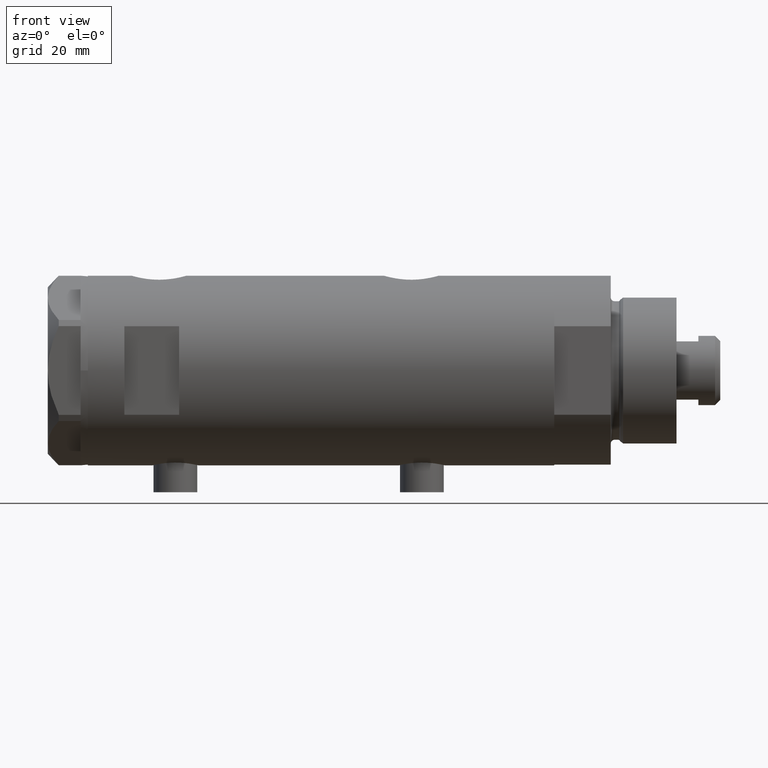
[diagram: clean part render]
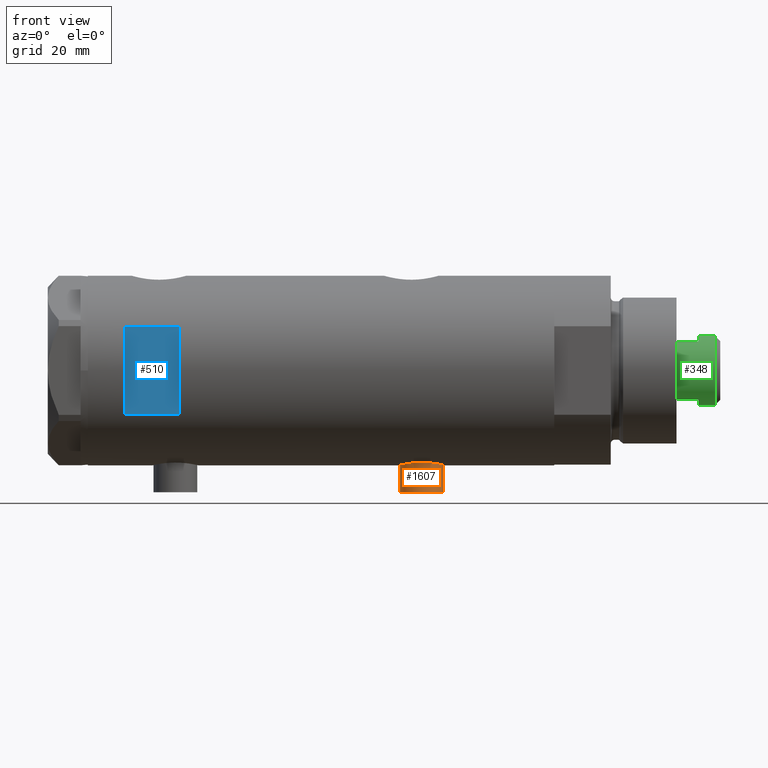
[diagram: same view with three faces highlighted in distinct colors, each labeled with its STEP entity id]
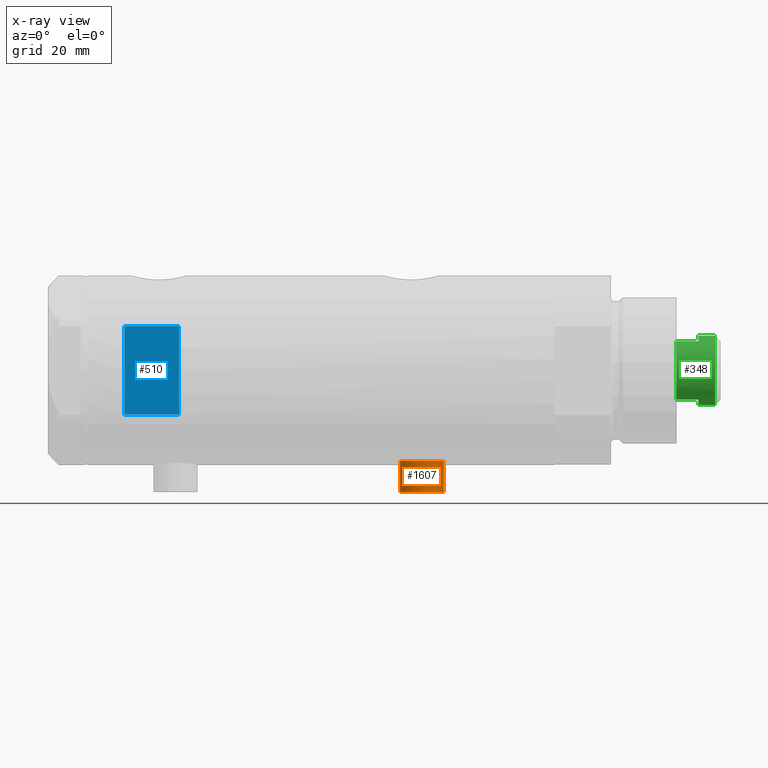
[diagram: x-ray of the same camera — body ghosted, the three highlighted faces saturated]
A machine part, front view with three faces highlighted in distinct colors.
The next image is the same camera in x-ray (body ghosted, the three faces saturated) — at least one of them is partly hidden behind the body in this view.
Their STEP definitions:

[orange] entity #1607 — the highlighted cylindrical surface (edge-blend (fillet) strip) has radius 6 mm, axis along (0, 0, 1).
#70 = AXIS2_PLACEMENT_3D ( 'NONE', #4715, #2452, #2082 ) ;
#504 = CARTESIAN_POINT ( 'NONE',  ( -33.39999999999999858, 0.000000000000000000, -33.65000000000001279 ) ) ;
#600 = DIRECTION ( 'NONE',  ( 0.000000000000000000, 0.000000000000000000, -1.000000000000000000 ) ) ;
#626 = EDGE_CURVE ( 'NONE', #2505, #1549, #2732, .T. ) ;
#638 = ORIENTED_EDGE ( 'NONE', *, *, #4095, .F. ) ;
#828 = CARTESIAN_POINT ( 'NONE',  ( -24.80000000000000426, 7.347880794884123680E-16, -21.65000000000000213 ) ) ;
#871 = CARTESIAN_POINT ( 'NONE',  ( -33.39999999999999858, 7.347880794884121708E-16, -21.65000000000000568 ) ) ;
#1031 = CARTESIAN_POINT ( 'NONE',  ( -24.80000000000000426, 0.000000000000000000, -33.65000000000001279 ) ) ;
#1067 = VECTOR ( 'NONE', #4271, 1000.000000000000000 ) ;
#1095 = DIRECTION ( 'NONE',  ( 1.000000000000000000, -0.000000000000000000, -0.000000000000000000 ) ) ;
#1258 = VECTOR ( 'NONE', #1095, 1000.000000000000000 ) ;
#1511 = CARTESIAN_POINT ( 'NONE',  ( -24.80000000000000426, 0.000000000000000000, -27.65000000000000924 ) ) ;
#1549 = VERTEX_POINT ( 'NONE', #828 ) ;
#1607 = ADVANCED_FACE ( 'NONE', ( #3248 ), #2520, .T. ) ;
#1781 = EDGE_LOOP ( 'NONE', ( #3502, #638, #1944, #2877 ) ) ;
#1803 = CARTESIAN_POINT ( 'NONE',  ( -33.39999999999999858, 0.000000000000000000, -27.65000000000000924 ) ) ;
#1944 = ORIENTED_EDGE ( 'NONE', *, *, #3850, .T. ) ;
#2082 = DIRECTION ( 'NONE',  ( 0.000000000000000000, 0.000000000000000000, 1.000000000000000000 ) ) ;
#2418 = VERTEX_POINT ( 'NONE', #504 ) ;
#2452 = DIRECTION ( 'NONE',  ( -1.000000000000000000, 0.000000000000000000, 0.000000000000000000 ) ) ;
#2505 = VERTEX_POINT ( 'NONE', #3226 ) ;
#2520 = CYLINDRICAL_SURFACE ( 'NONE', #3133, 6.000000000000005329 ) ;
#2732 = LINE ( 'NONE', #871, #1067 ) ;
#2820 = CIRCLE ( 'NONE', #3995, 6.000000000000001776 ) ;
#2877 = ORIENTED_EDGE ( 'NONE', *, *, #3859, .T. ) ;
#2971 = CIRCLE ( 'NONE', #70, 6.000000000000001776 ) ;
#3133 = AXIS2_PLACEMENT_3D ( 'NONE', #1803, #3970, #600 ) ;
#3226 = CARTESIAN_POINT ( 'NONE',  ( -33.39999999999999858, 7.347880794884123680E-16, -21.65000000000000213 ) ) ;
#3248 = FACE_OUTER_BOUND ( 'NONE', #1781, .T. ) ;
#3355 = DIRECTION ( 'NONE',  ( 0.000000000000000000, 0.000000000000000000, 1.000000000000000000 ) ) ;
#3502 = ORIENTED_EDGE ( 'NONE', *, *, #626, .F. ) ;
#3709 = LINE ( 'NONE', #4150, #1258 ) ;
#3850 = EDGE_CURVE ( 'NONE', #2418, #4682, #3709, .T. ) ;
#3859 = EDGE_CURVE ( 'NONE', #4682, #1549, #2820, .T. ) ;
#3970 = DIRECTION ( 'NONE',  ( 1.000000000000000000, -0.000000000000000000, -0.000000000000000000 ) ) ;
#3995 = AXIS2_PLACEMENT_3D ( 'NONE', #1511, #4521, #3355 ) ;
#4095 = EDGE_CURVE ( 'NONE', #2418, #2505, #2971, .T. ) ;
#4150 = CARTESIAN_POINT ( 'NONE',  ( -33.39999999999999858, 0.000000000000000000, -33.65000000000001279 ) ) ;
#4271 = DIRECTION ( 'NONE',  ( 1.000000000000000000, -0.000000000000000000, -0.000000000000000000 ) ) ;
#4521 = DIRECTION ( 'NONE',  ( -1.000000000000000000, 0.000000000000000000, 0.000000000000000000 ) ) ;
#4682 = VERTEX_POINT ( 'NONE', #1031 ) ;
#4715 = CARTESIAN_POINT ( 'NONE',  ( -33.39999999999999858, 0.000000000000000000, -27.65000000000000924 ) ) ;

[blue] entity #510 — the highlighted planar face has unit normal (-0, 1, 0).
#144 = VERTEX_POINT ( 'NONE', #1234 ) ;
#303 = VECTOR ( 'NONE', #810, 1000.000000000000000 ) ;
#373 = VECTOR ( 'NONE', #2524, 1000.000000000000000 ) ;
#408 = CARTESIAN_POINT ( 'NONE',  ( -12.12435565298214080, -23.00000000000000355, 53.94999999999999574 ) ) ;
#491 = CARTESIAN_POINT ( 'NONE',  ( -12.12435565298214080, -23.00000000000000355, 38.94999999999999574 ) ) ;
#510 = ADVANCED_FACE ( 'NONE', ( #762 ), #1209, .F. ) ;
#762 = FACE_OUTER_BOUND ( 'NONE', #3215, .T. ) ;
#810 = DIRECTION ( 'NONE',  ( 1.000000000000000000, -0.000000000000000000, -0.000000000000000000 ) ) ;
#842 = DIRECTION ( 'NONE',  ( 0.000000000000000000, -0.000000000000000000, 1.000000000000000000 ) ) ;
#870 = DIRECTION ( 'NONE',  ( -0.000000000000000000, -0.000000000000000000, -1.000000000000000000 ) ) ;
#924 = ORIENTED_EDGE ( 'NONE', *, *, #3700, .T. ) ;
#1209 = PLANE ( 'NONE',  #3595 ) ;
#1234 = CARTESIAN_POINT ( 'NONE',  ( 12.12435565298214080, -23.00000000000000355, 53.94999999999999574 ) ) ;
#1236 = LINE ( 'NONE', #2730, #1788 ) ;
#1368 = EDGE_CURVE ( 'NONE', #2245, #144, #2376, .T. ) ;
#1599 = CARTESIAN_POINT ( 'NONE',  ( -26.00000000000000355, -23.00000000000000355, 53.94999999999999574 ) ) ;
#1788 = VECTOR ( 'NONE', #870, 1000.000000000000000 ) ;
#1849 = ORIENTED_EDGE ( 'NONE', *, *, #2518, .T. ) ;
#2245 = VERTEX_POINT ( 'NONE', #4093 ) ;
#2376 = LINE ( 'NONE', #4399, #373 ) ;
#2473 = VERTEX_POINT ( 'NONE', #491 ) ;
#2518 = EDGE_CURVE ( 'NONE', #2473, #2245, #3491, .T. ) ;
#2524 = DIRECTION ( 'NONE',  ( 0.000000000000000000, 0.000000000000000000, 1.000000000000000000 ) ) ;
#2730 = CARTESIAN_POINT ( 'NONE',  ( -12.12435565298214080, -23.00000000000000355, -63.95000000000000995 ) ) ;
#2833 = LINE ( 'NONE', #1599, #4321 ) ;
#3071 = CARTESIAN_POINT ( 'NONE',  ( -26.00000000000000355, -23.00000000000000355, 53.94999999999999574 ) ) ;
#3104 = DIRECTION ( 'NONE',  ( 1.000000000000000000, -0.000000000000000000, -0.000000000000000000 ) ) ;
#3162 = EDGE_CURVE ( 'NONE', #3852, #144, #2833, .T. ) ;
#3215 = EDGE_LOOP ( 'NONE', ( #924, #1849, #4216, #4601 ) ) ;
#3491 = LINE ( 'NONE', #4684, #303 ) ;
#3595 = AXIS2_PLACEMENT_3D ( 'NONE', #3071, #4220, #842 ) ;
#3700 = EDGE_CURVE ( 'NONE', #3852, #2473, #1236, .T. ) ;
#3852 = VERTEX_POINT ( 'NONE', #408 ) ;
#4093 = CARTESIAN_POINT ( 'NONE',  ( 12.12435565298214080, -23.00000000000000355, 38.94999999999999574 ) ) ;
#4216 = ORIENTED_EDGE ( 'NONE', *, *, #1368, .T. ) ;
#4220 = DIRECTION ( 'NONE',  ( 0.000000000000000000, 1.000000000000000000, 0.000000000000000000 ) ) ;
#4321 = VECTOR ( 'NONE', #3104, 1000.000000000000000 ) ;
#4399 = CARTESIAN_POINT ( 'NONE',  ( 12.12435565298214080, -23.00000000000000355, -63.95000000000000995 ) ) ;
#4601 = ORIENTED_EDGE ( 'NONE', *, *, #3162, .F. ) ;
#4684 = CARTESIAN_POINT ( 'NONE',  ( -26.00000000000000355, -23.00000000000000355, 38.94999999999999574 ) ) ;

[green] entity #348 — the highlighted cylindrical surface (edge-blend (fillet) strip) has radius 9.5 mm, axis along (-1, -0, 0).
#262 = VERTEX_POINT ( 'NONE', #2609 ) ;
#302 = DIRECTION ( 'NONE',  ( 1.000000000000000000, 0.000000000000000000, 0.000000000000000000 ) ) ;
#327 = EDGE_CURVE ( 'NONE', #3152, #4741, #2713, .T. ) ;
#348 = ADVANCED_FACE ( 'NONE', ( #3792 ), #2864, .T. ) ;
#395 = ORIENTED_EDGE ( 'NONE', *, *, #3359, .F. ) ;
#530 = VECTOR ( 'NONE', #3020, 1000.000000000000000 ) ;
#531 = CARTESIAN_POINT ( 'NONE',  ( -9.500000000000000000, 0.000000000000000000, 143.5999999999999943 ) ) ;
#598 = VERTEX_POINT ( 'NONE', #4656 ) ;
#666 = LINE ( 'NONE', #1765, #3057 ) ;
#708 = ORIENTED_EDGE ( 'NONE', *, *, #2180, .T. ) ;
#785 = VERTEX_POINT ( 'NONE', #4357 ) ;
#787 = EDGE_CURVE ( 'NONE', #3923, #3152, #1856, .T. ) ;
#798 = CARTESIAN_POINT ( 'NONE',  ( -7.982950582334829015, -5.150000000000001243, 143.5999999999999943 ) ) ;
#803 = ORIENTED_EDGE ( 'NONE', *, *, #1680, .T. ) ;
#1086 = VECTOR ( 'NONE', #2515, 1000.000000000000000 ) ;
#1121 = DIRECTION ( 'NONE',  ( -0.000000000000000000, -0.000000000000000000, -1.000000000000000000 ) ) ;
#1124 = LINE ( 'NONE', #2992, #2496 ) ;
#1135 = CARTESIAN_POINT ( 'NONE',  ( 0.000000000000000000, 0.000000000000000000, 137.5999999999999943 ) ) ;
#1173 = DIRECTION ( 'NONE',  ( 1.000000000000000000, 0.000000000000000000, 0.000000000000000000 ) ) ;
#1497 = DIRECTION ( 'NONE',  ( -0.000000000000000000, -0.000000000000000000, -1.000000000000000000 ) ) ;
#1680 = EDGE_CURVE ( 'NONE', #3915, #1688, #4854, .T. ) ;
#1688 = VERTEX_POINT ( 'NONE', #3096 ) ;
#1765 = CARTESIAN_POINT ( 'NONE',  ( -9.500000000000001776, 0.000000000000000000, 143.5999999999999943 ) ) ;
#1856 = CIRCLE ( 'NONE', #4383, 9.500000000000000000 ) ;
#1873 = CIRCLE ( 'NONE', #4636, 9.500000000000000000 ) ;
#1973 = DIRECTION ( 'NONE',  ( 1.000000000000000000, 0.000000000000000000, 0.000000000000000000 ) ) ;
#2180 = EDGE_CURVE ( 'NONE', #1688, #3923, #666, .T. ) ;
#2237 = ORIENTED_EDGE ( 'NONE', *, *, #4478, .F. ) ;
#2265 = AXIS2_PLACEMENT_3D ( 'NONE', #4654, #4369, #1973 ) ;
#2496 = VECTOR ( 'NONE', #1497, 1000.000000000000000 ) ;
#2504 = CARTESIAN_POINT ( 'NONE',  ( 0.000000000000000000, 0.000000000000000000, 143.5999999999999943 ) ) ;
#2515 = DIRECTION ( 'NONE',  ( -0.000000000000000000, -0.000000000000000000, -1.000000000000000000 ) ) ;
#2568 = ORIENTED_EDGE ( 'NONE', *, *, #3908, .T. ) ;
#2609 = CARTESIAN_POINT ( 'NONE',  ( 7.982950582334832568, -5.149999999999997691, 143.5999999999999943 ) ) ;
#2713 = LINE ( 'NONE', #798, #530 ) ;
#2864 = CYLINDRICAL_SURFACE ( 'NONE', #3521, 9.500000000000001776 ) ;
#2936 = CARTESIAN_POINT ( 'NONE',  ( 0.000000000000000000, 0.000000000000000000, 143.5999999999999943 ) ) ;
#2992 = CARTESIAN_POINT ( 'NONE',  ( 7.982950582334832568, -5.149999999999997691, 143.5999999999999943 ) ) ;
#3020 = DIRECTION ( 'NONE',  ( -0.000000000000000000, -0.000000000000000000, -1.000000000000000000 ) ) ;
#3034 = CARTESIAN_POINT ( 'NONE',  ( 0.000000000000000000, 0.000000000000000000, 143.5999999999999943 ) ) ;
#3057 = VECTOR ( 'NONE', #4416, 1000.000000000000000 ) ;
#3096 = CARTESIAN_POINT ( 'NONE',  ( -9.500000000000001776, 0.000000000000000000, 148.1999999999999886 ) ) ;
#3152 = VERTEX_POINT ( 'NONE', #4680 ) ;
#3264 = LINE ( 'NONE', #4388, #1086 ) ;
#3286 = ORIENTED_EDGE ( 'NONE', *, *, #787, .T. ) ;
#3359 = EDGE_CURVE ( 'NONE', #262, #598, #1124, .T. ) ;
#3456 = AXIS2_PLACEMENT_3D ( 'NONE', #1135, #3674, #302 ) ;
#3521 = AXIS2_PLACEMENT_3D ( 'NONE', #2504, #1121, #4056 ) ;
#3674 = DIRECTION ( 'NONE',  ( 0.000000000000000000, 0.000000000000000000, 1.000000000000000000 ) ) ;
#3792 = FACE_OUTER_BOUND ( 'NONE', #4771, .T. ) ;
#3908 = EDGE_CURVE ( 'NONE', #262, #785, #1873, .T. ) ;
#3915 = VERTEX_POINT ( 'NONE', #4831 ) ;
#3916 = ORIENTED_EDGE ( 'NONE', *, *, #327, .T. ) ;
#3923 = VERTEX_POINT ( 'NONE', #531 ) ;
#4056 = DIRECTION ( 'NONE',  ( -1.000000000000000000, 0.000000000000000000, 0.000000000000000000 ) ) ;
#4081 = DIRECTION ( 'NONE',  ( 1.000000000000000000, 0.000000000000000000, 0.000000000000000000 ) ) ;
#4265 = EDGE_CURVE ( 'NONE', #4741, #598, #4640, .T. ) ;
#4357 = CARTESIAN_POINT ( 'NONE',  ( 9.500000000000000000, 1.163414459189985485E-15, 143.5999999999999943 ) ) ;
#4369 = DIRECTION ( 'NONE',  ( 0.000000000000000000, 0.000000000000000000, -1.000000000000000000 ) ) ;
#4383 = AXIS2_PLACEMENT_3D ( 'NONE', #2936, #4450, #4081 ) ;
#4388 = CARTESIAN_POINT ( 'NONE',  ( 9.500000000000001776, 1.163414459189985682E-15, 143.5999999999999943 ) ) ;
#4416 = DIRECTION ( 'NONE',  ( -0.000000000000000000, -0.000000000000000000, -1.000000000000000000 ) ) ;
#4450 = DIRECTION ( 'NONE',  ( 0.000000000000000000, 0.000000000000000000, 1.000000000000000000 ) ) ;
#4478 = EDGE_CURVE ( 'NONE', #3915, #785, #3264, .T. ) ;
#4546 = DIRECTION ( 'NONE',  ( 0.000000000000000000, 0.000000000000000000, 1.000000000000000000 ) ) ;
#4554 = CARTESIAN_POINT ( 'NONE',  ( -7.982950582334825462, -5.150000000000019007, 137.5999999999999943 ) ) ;
#4558 = ORIENTED_EDGE ( 'NONE', *, *, #4265, .T. ) ;
#4636 = AXIS2_PLACEMENT_3D ( 'NONE', #3034, #4546, #1173 ) ;
#4640 = CIRCLE ( 'NONE', #3456, 9.500000000000001776 ) ;
#4654 = CARTESIAN_POINT ( 'NONE',  ( 0.000000000000000000, 0.000000000000000000, 148.1999999999999886 ) ) ;
#4656 = CARTESIAN_POINT ( 'NONE',  ( 7.982950582334834344, -5.150000000000009237, 137.5999999999999943 ) ) ;
#4680 = CARTESIAN_POINT ( 'NONE',  ( -7.982950582334825462, -5.150000000000003020, 143.5999999999999943 ) ) ;
#4741 = VERTEX_POINT ( 'NONE', #4554 ) ;
#4771 = EDGE_LOOP ( 'NONE', ( #2237, #803, #708, #3286, #3916, #4558, #395, #2568 ) ) ;
#4831 = CARTESIAN_POINT ( 'NONE',  ( 9.500000000000001776, 1.163414459189985682E-15, 148.1999999999999886 ) ) ;
#4854 = CIRCLE ( 'NONE', #2265, 9.500000000000001776 ) ;